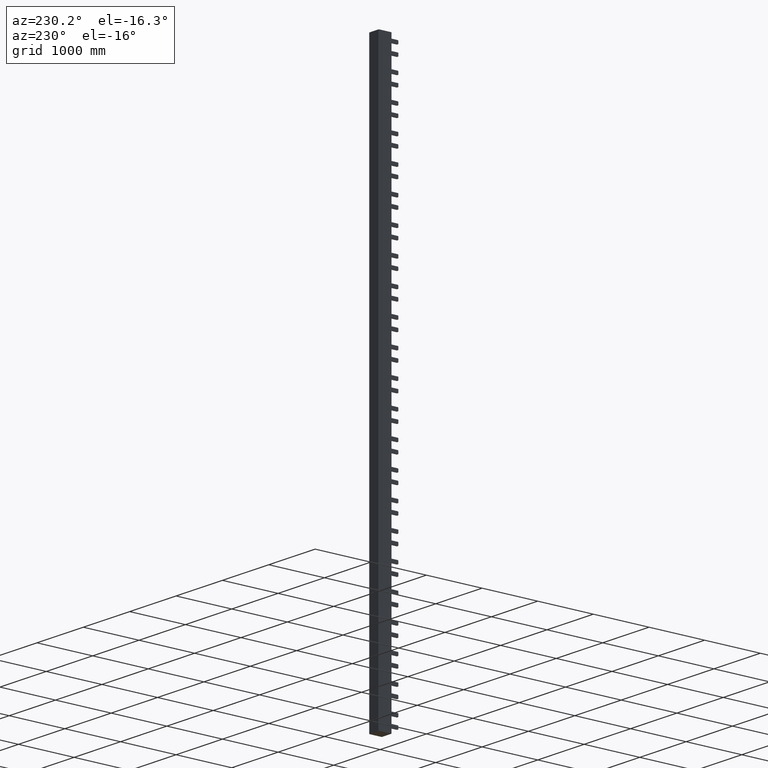
[diagram: clean part render]
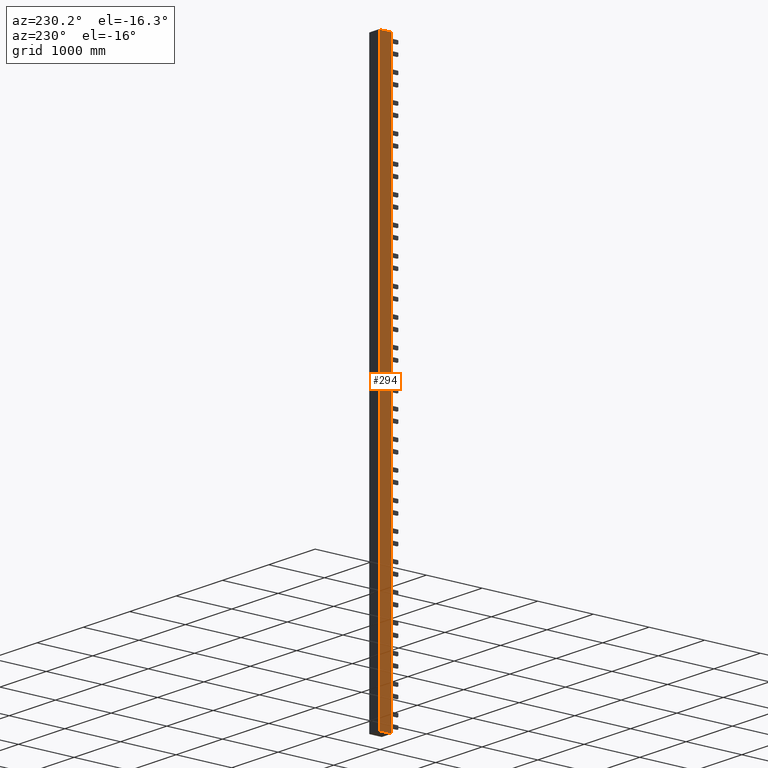
[diagram: same view with one face highlighted and labeled with its STEP entity id]
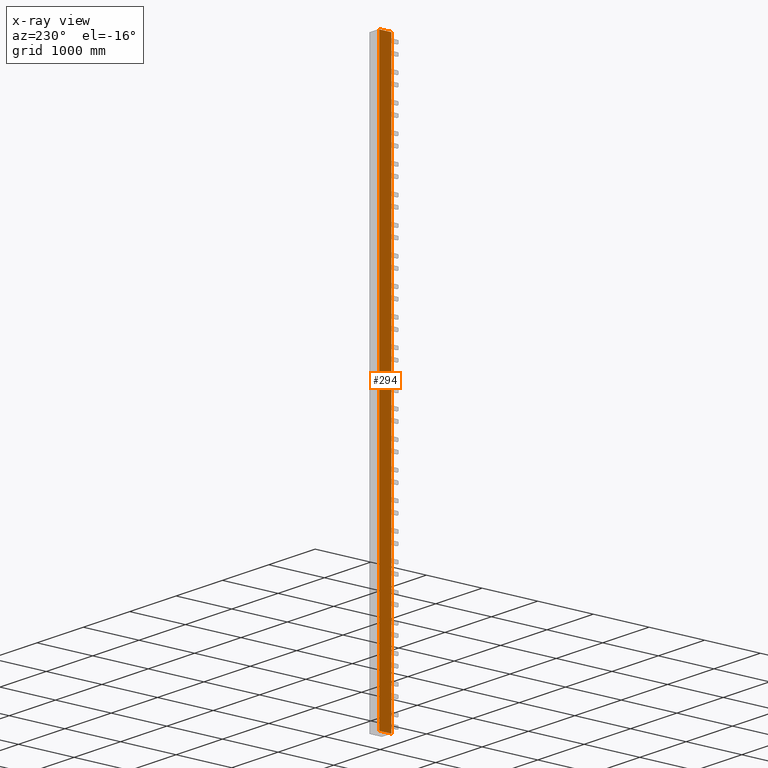
[diagram: x-ray of the same camera — body ghosted, the highlighted face saturated]
A machine part, auxiliary view. The second image highlights one B-rep face of the part: STEP entity #294.
The next image is the same camera in x-ray: the body ghosted, the highlighted face saturated — about 0% of this face is hidden behind the body in this view.
In plain terms, the highlighted planar face has unit normal (-1, -0, 0).
Its self-contained STEP definition (entity closure, byte-faithful):
#194=CARTESIAN_POINT('',(6698.0208871468094,6049.4066631202095,-10000.0));
#195=VERTEX_POINT('',#194);
#213=CARTESIAN_POINT('',(6698.0208871468058,6049.4066631202095,90.0));
#214=VERTEX_POINT('',#213);
#222=CARTESIAN_POINT('',(6698.0208871468094,6049.4066631202095,90.0));
#223=DIRECTION('',(0.0,0.0,-1.0));
#224=VECTOR('',#223,10090.0);
#225=LINE('',#222,#224);
#226=EDGE_CURVE('',#214,#195,#225,.T.);
#264=CARTESIAN_POINT('',(6698.0208871467566,6276.4066631202131,0.0));
#265=DIRECTION('',(-1.0,-2.224308E-013,0.0));
#266=DIRECTION('',(0.0,0.0,1.0));
#267=AXIS2_PLACEMENT_3D('',#264,#265,#266);
#268=PLANE('',#267);
#269=CARTESIAN_POINT('',(6698.0208871467594,6266.4066631202095,-10000.0));
#270=VERTEX_POINT('',#269);
#271=CARTESIAN_POINT('',(6698.0208871467594,6266.4066631202095,90.0));
#272=VERTEX_POINT('',#271);
#273=CARTESIAN_POINT('',(6698.0208871467594,6266.4066631202095,-10000.0));
#274=DIRECTION('',(0.0,0.0,1.0));
#275=VECTOR('',#274,10090.0);
#276=LINE('',#273,#275);
#277=EDGE_CURVE('',#270,#272,#276,.T.);
#278=ORIENTED_EDGE('',*,*,#277,.F.);
#279=CARTESIAN_POINT('',(6698.0208871467594,6266.4066631202095,-10000.0));
#280=DIRECTION('',(2.221347E-013,-1.0,0.0));
#281=VECTOR('',#280,216.99999999999909);
#282=LINE('',#279,#281);
#283=EDGE_CURVE('',#270,#195,#282,.T.);
#284=ORIENTED_EDGE('',*,*,#283,.T.);
#285=ORIENTED_EDGE('',*,*,#226,.F.);
#286=CARTESIAN_POINT('',(6698.0208871468094,6049.4066631202095,90.0));
#287=DIRECTION('',(-2.221347E-013,1.0,0.0));
#288=VECTOR('',#287,216.99999999999909);
#289=LINE('',#286,#288);
#290=EDGE_CURVE('',#214,#272,#289,.T.);
#291=ORIENTED_EDGE('',*,*,#290,.T.);
#292=EDGE_LOOP('',(#278,#284,#285,#291));
#293=FACE_OUTER_BOUND('',#292,.T.);
#294=ADVANCED_FACE('',(#293),#268,.T.);